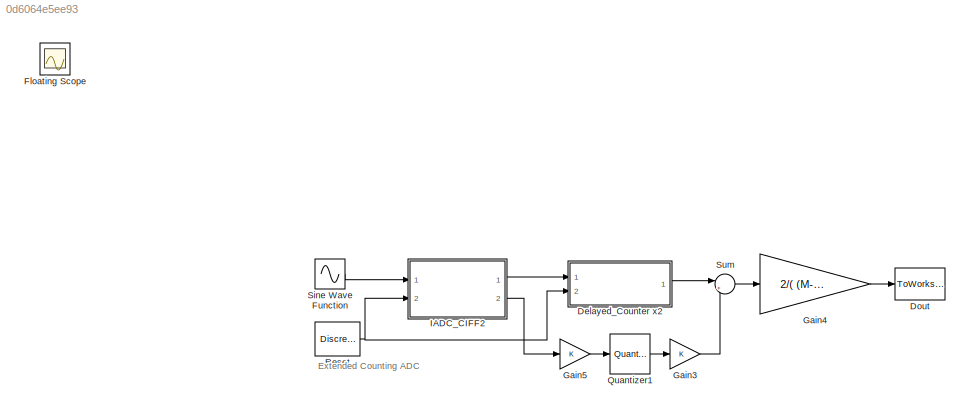
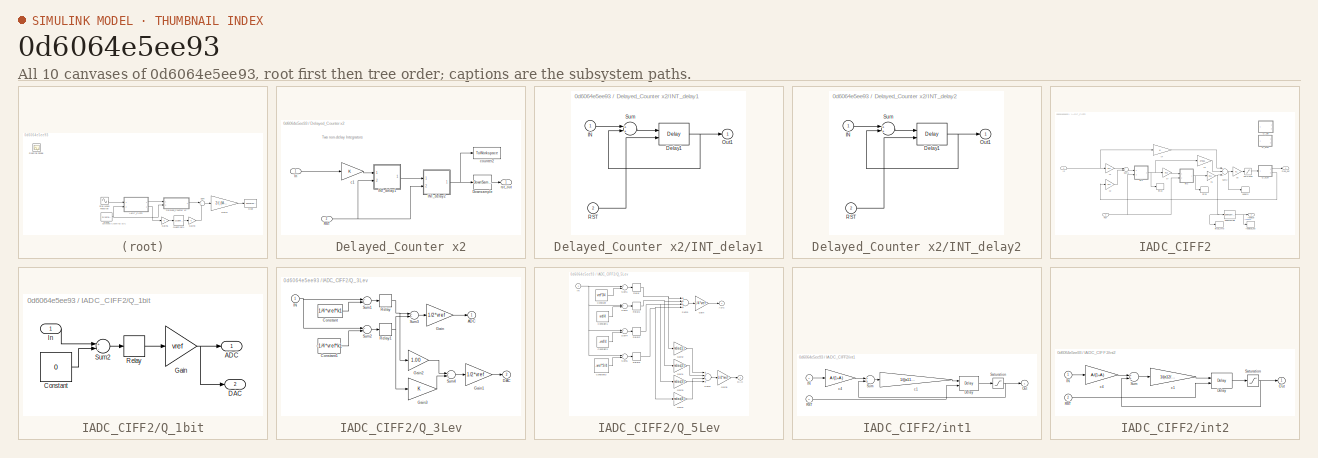
[diagram: thumbnail index - all 10 canvases of the model, root first then tree order]
MODEL slx_0d6064e5ee93
KIND model
CONFIG AbsTol = auto
CONFIG EnableMultiTasking = on
CONFIG FixedStep = auto
CONFIG MaxStep = auto
CONFIG MinStep = auto
CONFIG RelTol = 1e-3
CONFIG SampleTimeConstraint = Unconstrained
CONFIG Solver = ode45
CONFIG SolverName = ode45
CONFIG StartTime = 0.0
CONFIG StopTime = 100e-6
BLOCK [SubSystem] Delayed_Counter x2
  Ports = [2, 1]
  RequestExecContextInheritance = off
BLOCK [DownSample] Delayed_Counter x2/Downsample
  InputProcessing = Elements as channels (sample based)
  N = OSR
  RateOptions = Allow multirate processing
  phase = OSR-1
BLOCK [SubSystem] Delayed_Counter x2/INT_delay1
  Ports = [2, 1]
  RequestExecContextInheritance = off
BLOCK [Delay] Delayed_Counter x2/INT_delay1/Delay1
  DelayLength = 1
  ExternalReset = Rising
  InitialCondition = 0
  InputPortMap = u0,r5
  Ports = [2, 1]
  UserDataPersistent = on
BLOCK [Inport] Delayed_Counter x2/INT_delay1/IN
  IconDisplay = Port number
BLOCK [Outport] Delayed_Counter x2/INT_delay1/Out1
  IconDisplay = Port number
  VectorParamsAs1DForOutWhenUnconnected = off
BLOCK [Inport] Delayed_Counter x2/INT_delay1/RST
  IconDisplay = Port number
  Port = 2
BLOCK [Sum] Delayed_Counter x2/INT_delay1/Sum
  Ports = [2, 1]
BLOCK [SubSystem] Delayed_Counter x2/INT_delay2
  Ports = [2, 1]
  RequestExecContextInheritance = off
BLOCK [Delay] Delayed_Counter x2/INT_delay2/Delay1
  DelayLength = 1
  ExternalReset = Rising
  InitialCondition = 0
  InputPortMap = u0,r5
  Ports = [2, 1]
  UserDataPersistent = on
BLOCK [Inport] Delayed_Counter x2/INT_delay2/IN
  IconDisplay = Port number
BLOCK [Outport] Delayed_Counter x2/INT_delay2/Out1
  IconDisplay = Port number
  VectorParamsAs1DForOutWhenUnconnected = off
BLOCK [Inport] Delayed_Counter x2/INT_delay2/RST
  IconDisplay = Port number
  Port = 2
BLOCK [Sum] Delayed_Counter x2/INT_delay2/Sum
  Ports = [2, 1]
BLOCK [Inport] Delayed_Counter x2/In
  IconDisplay = Port number
BLOCK [Inport] Delayed_Counter x2/RST
  IconDisplay = Port number
  Port = 2
BLOCK [Gain] Delayed_Counter x2/c1
BLOCK [ToWorkspace] Delayed_Counter x2/counter2
  MaxDataPoints = inf
  Ports = [1]
  SampleTime = -1
  VariableName = counter2
BLOCK [Outport] Delayed_Counter x2/rst_out
  IconDisplay = Port number
  VectorParamsAs1DForOutWhenUnconnected = off
BLOCK [ToWorkspace] Dout
  MaxDataPoints = inf
  Ports = [1]
  SampleTime = -1
  VariableName = Dout
BLOCK [Scope] Floating Scope
  Floating = off
  IOType = viewer
  NumInputPorts = 1
  Ports = []
  ScopeSpecificationString = C++SS(StrPVP('Location','[376, 294, 963, 755]'),StrPVP('Open','off'),MxPVP('AxesTitles',54,'struct(''axes1'',''%<SignalLabel>'')'),StrPVP('DataFormat','StructureWithTime'),StrPVP('BlockParamSampleTime','0'),StrPVP('LimitDataPoints','on'),StrPVP('Decimation','1'),StrPVP('BlockParamSampleInput','off'))
BLOCK [Gain] Gain3
  OutDataTypeStr = Inherit: Inherit via internal rule
  ParamDataTypeStr = Inherit: Inherit via internal rule
  SaturateOnIntegerOverflow = off
BLOCK [Gain] Gain4
  Gain = 2/( (M-1)*(M) )
  OutDataTypeStr = Inherit: Inherit via internal rule
  ParamDataTypeStr = Inherit: Inherit via internal rule
  SaturateOnIntegerOverflow = off
BLOCK [Gain] Gain5
  OutDataTypeStr = Inherit: Inherit via internal rule
  ParamDataTypeStr = Inherit: Inherit via internal rule
  SaturateOnIntegerOverflow = off
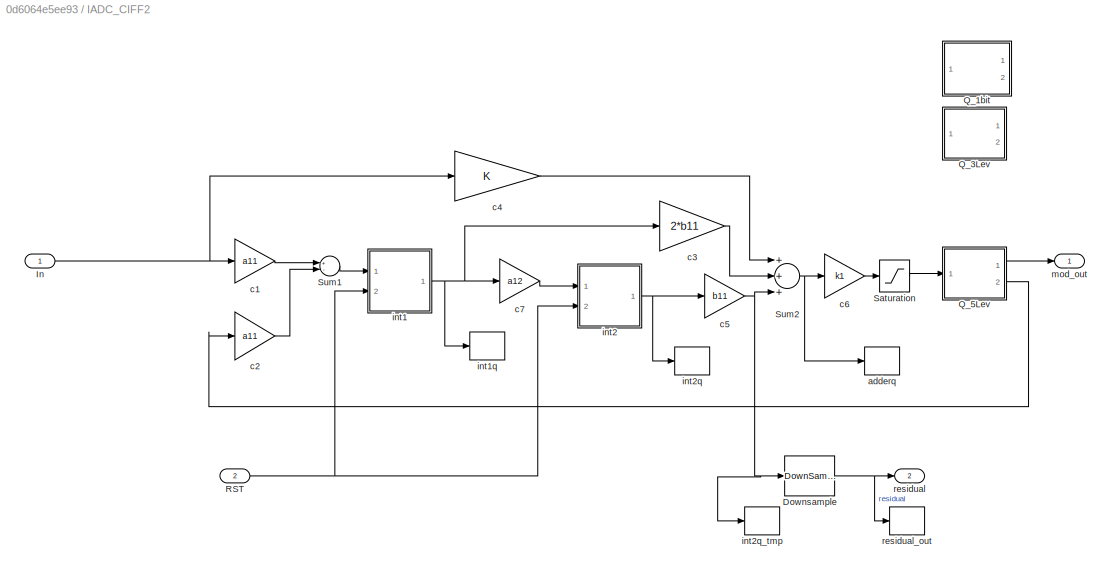
BLOCK [SubSystem] IADC_CIFF2
  Ports = [2, 2]
  RequestExecContextInheritance = off
BLOCK [DownSample] IADC_CIFF2/Downsample
  InputProcessing = Elements as channels (sample based)
  N = OSR
  RateOptions = Allow multirate processing
  phase = OSR-1
BLOCK [Inport] IADC_CIFF2/In
  IconDisplay = Port number
BLOCK [SubSystem] IADC_CIFF2/Q_1bit
  Commented = on
  Ports = [1, 2]
  RequestExecContextInheritance = off
BLOCK [Outport] IADC_CIFF2/Q_1bit/ADC
  IconDisplay = Port number
  VectorParamsAs1DForOutWhenUnconnected = off
BLOCK [Constant] IADC_CIFF2/Q_1bit/Constant
  Value = 0
BLOCK [Outport] IADC_CIFF2/Q_1bit/DAC
  IconDisplay = Port number
  Port = 2
  VectorParamsAs1DForOutWhenUnconnected = off
BLOCK [Gain] IADC_CIFF2/Q_1bit/Gain
  Gain = vref
  OutDataTypeStr = Inherit: Inherit via internal rule
  ParamDataTypeStr = Inherit: Inherit via internal rule
  SaturateOnIntegerOverflow = off
BLOCK [Inport] IADC_CIFF2/Q_1bit/In
  IconDisplay = Port number
BLOCK [Relay] IADC_CIFF2/Q_1bit/Relay
  OffOutputValue = -1
  SampleTime = tclk
BLOCK [Sum] IADC_CIFF2/Q_1bit/Sum2
  Inputs = +-
  Ports = [2, 1]
BLOCK [SubSystem] IADC_CIFF2/Q_3Lev
  Commented = on
  Ports = [1, 2]
  RequestExecContextInheritance = off
BLOCK [Outport] IADC_CIFF2/Q_3Lev/ADC
  IconDisplay = Port number
  VectorParamsAs1DForOutWhenUnconnected = off
BLOCK [Constant] IADC_CIFF2/Q_3Lev/Constant
  Value = 1/4*vref*k1
BLOCK [Constant] IADC_CIFF2/Q_3Lev/Constant1
  Value = -1/4*vref*k1
BLOCK [Outport] IADC_CIFF2/Q_3Lev/DAC
  IconDisplay = Port number
  Port = 2
  VectorParamsAs1DForOutWhenUnconnected = off
BLOCK [Gain] IADC_CIFF2/Q_3Lev/Gain
  Gain = 1/2*vref
  OutDataTypeStr = Inherit: Inherit via internal rule
  ParamDataTypeStr = Inherit: Inherit via internal rule
  SaturateOnIntegerOverflow = off
BLOCK [Gain] IADC_CIFF2/Q_3Lev/Gain1
  Gain = 1/2*vref
  OutDataTypeStr = Inherit: Inherit via internal rule
  ParamDataTypeStr = Inherit: Inherit via internal rule
  SaturateOnIntegerOverflow = off
BLOCK [Gain] IADC_CIFF2/Q_3Lev/Gain2
  Gain = 1.00
  OutDataTypeStr = Inherit: Inherit via internal rule
  ParamDataTypeStr = Inherit: Inherit via internal rule
  SaturateOnIntegerOverflow = off
BLOCK [Gain] IADC_CIFF2/Q_3Lev/Gain3
  OutDataTypeStr = Inherit: Inherit via internal rule
  ParamDataTypeStr = Inherit: Inherit via internal rule
  SaturateOnIntegerOverflow = off
BLOCK [Inport] IADC_CIFF2/Q_3Lev/IN
  IconDisplay = Port number
BLOCK [Relay] IADC_CIFF2/Q_3Lev/Relay
  OffOutputValue = -1
  SampleTime = tclk
BLOCK [Relay] IADC_CIFF2/Q_3Lev/Relay1
  OffOutputValue = -1
  SampleTime = tclk
BLOCK [Sum] IADC_CIFF2/Q_3Lev/Sum1
  Inputs = +-
  Ports = [2, 1]
BLOCK [Sum] IADC_CIFF2/Q_3Lev/Sum2
  Inputs = +-
  Ports = [2, 1]
BLOCK [Sum] IADC_CIFF2/Q_3Lev/Sum3
  Ports = [2, 1]
BLOCK [Sum] IADC_CIFF2/Q_3Lev/Sum4
  Ports = [2, 1]
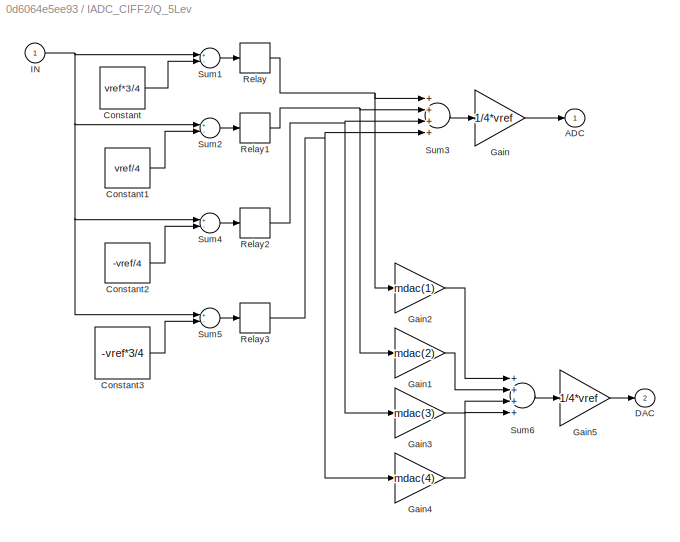
BLOCK [SubSystem] IADC_CIFF2/Q_5Lev
  Ports = [1, 2]
  RequestExecContextInheritance = off
BLOCK [Outport] IADC_CIFF2/Q_5Lev/ADC
  IconDisplay = Port number
  VectorParamsAs1DForOutWhenUnconnected = off
BLOCK [Constant] IADC_CIFF2/Q_5Lev/Constant
  Value = vref*3/4
BLOCK [Constant] IADC_CIFF2/Q_5Lev/Constant1
  Value = vref/4
BLOCK [Constant] IADC_CIFF2/Q_5Lev/Constant2
  Value = -vref/4
BLOCK [Constant] IADC_CIFF2/Q_5Lev/Constant3
  Value = -vref*3/4
BLOCK [Outport] IADC_CIFF2/Q_5Lev/DAC
  IconDisplay = Port number
  Port = 2
  VectorParamsAs1DForOutWhenUnconnected = off
BLOCK [Gain] IADC_CIFF2/Q_5Lev/Gain
  Gain = 1/4*vref
  OutDataTypeStr = Inherit: Inherit via internal rule
  ParamDataTypeStr = Inherit: Inherit via internal rule
  SaturateOnIntegerOverflow = off
BLOCK [Gain] IADC_CIFF2/Q_5Lev/Gain1
  Gain = mdac(2)
  OutDataTypeStr = Inherit: Inherit via internal rule
  ParamDataTypeStr = Inherit: Inherit via internal rule
  SaturateOnIntegerOverflow = off
BLOCK [Gain] IADC_CIFF2/Q_5Lev/Gain2
  Gain = mdac(1)
  OutDataTypeStr = Inherit: Inherit via internal rule
  ParamDataTypeStr = Inherit: Inherit via internal rule
  SaturateOnIntegerOverflow = off
BLOCK [Gain] IADC_CIFF2/Q_5Lev/Gain3
  Gain = mdac(3)
  OutDataTypeStr = Inherit: Inherit via internal rule
  ParamDataTypeStr = Inherit: Inherit via internal rule
  SaturateOnIntegerOverflow = off
BLOCK [Gain] IADC_CIFF2/Q_5Lev/Gain4
  Gain = mdac(4)
  OutDataTypeStr = Inherit: Inherit via internal rule
  ParamDataTypeStr = Inherit: Inherit via internal rule
  SaturateOnIntegerOverflow = off
BLOCK [Gain] IADC_CIFF2/Q_5Lev/Gain5
  Gain = 1/4*vref
  OutDataTypeStr = Inherit: Inherit via internal rule
  ParamDataTypeStr = Inherit: Inherit via internal rule
  SaturateOnIntegerOverflow = off
BLOCK [Inport] IADC_CIFF2/Q_5Lev/IN
  IconDisplay = Port number
BLOCK [Relay] IADC_CIFF2/Q_5Lev/Relay
  OffOutputValue = -1
  SampleTime = tclk
BLOCK [Relay] IADC_CIFF2/Q_5Lev/Relay1
  OffOutputValue = -1
  SampleTime = tclk
BLOCK [Relay] IADC_CIFF2/Q_5Lev/Relay2
  OffOutputValue = -1
  SampleTime = tclk
BLOCK [Relay] IADC_CIFF2/Q_5Lev/Relay3
  OffOutputValue = -1
  SampleTime = tclk
BLOCK [Sum] IADC_CIFF2/Q_5Lev/Sum1
  Inputs = +-
  Ports = [2, 1]
BLOCK [Sum] IADC_CIFF2/Q_5Lev/Sum2
  Inputs = +-
  Ports = [2, 1]
BLOCK [Sum] IADC_CIFF2/Q_5Lev/Sum3
  Inputs = ++++
  Ports = [4, 1]
BLOCK [Sum] IADC_CIFF2/Q_5Lev/Sum4
  Inputs = +-
  Ports = [2, 1]
BLOCK [Sum] IADC_CIFF2/Q_5Lev/Sum5
  Inputs = +-
  Ports = [2, 1]
BLOCK [Sum] IADC_CIFF2/Q_5Lev/Sum6
  Inputs = ++++
  Ports = [4, 1]
BLOCK [Inport] IADC_CIFF2/RST
  IconDisplay = Port number
  Port = 2
BLOCK [Saturate] IADC_CIFF2/Saturation
  InputPortMap = u0
  LowerLimit = -1*adder_max
  Ports = [1, 1]
  UpperLimit = adder_max*1
BLOCK [Sum] IADC_CIFF2/Sum1
  Inputs = +-
  Ports = [2, 1]
BLOCK [Sum] IADC_CIFF2/Sum2
  Inputs = +++
  Ports = [3, 1]
BLOCK [ToWorkspace] IADC_CIFF2/adderq
  MaxDataPoints = inf
  Ports = [1]
  SampleTime = -1
  VariableName = adderq
BLOCK [Gain] IADC_CIFF2/c1
  Gain = a11
BLOCK [Gain] IADC_CIFF2/c2
  Gain = a11
BLOCK [Gain] IADC_CIFF2/c3
  Gain = 2*b11
BLOCK [Gain] IADC_CIFF2/c4
BLOCK [Gain] IADC_CIFF2/c5
  Gain = b11
BLOCK [Gain] IADC_CIFF2/c6
  Gain = k1
BLOCK [Gain] IADC_CIFF2/c7
  Gain = a12
BLOCK [SubSystem] IADC_CIFF2/int1
  Ports = [2, 1]
  RequestExecContextInheritance = off
BLOCK [Delay] IADC_CIFF2/int1/Delay
  DelayLength = 1
  ExternalReset = Rising
  InitialCondition = 0
  InputPortMap = u0,r5
  Ports = [2, 1]
  UserDataPersistent = on
BLOCK [Inport] IADC_CIFF2/int1/IN
  IconDisplay = Port number
BLOCK [Outport] IADC_CIFF2/int1/Out
  IconDisplay = Port number
  VectorParamsAs1DForOutWhenUnconnected = off
BLOCK [Inport] IADC_CIFF2/int1/RST
  IconDisplay = Port number
  Port = 2
BLOCK [Saturate] IADC_CIFF2/int1/Saturation
  InputPortMap = u0
  LowerLimit = -1*Amax
  Ports = [1, 1]
  UpperLimit = Amax
BLOCK [Sum] IADC_CIFF2/int1/Sum
  Ports = [2, 1]
BLOCK [Gain] IADC_CIFF2/int1/c1
  Gain = 1/((a11+a11)/(1+A) +1)
BLOCK [Gain] IADC_CIFF2/int1/c4
  Gain = A/(1+A)
BLOCK [ToWorkspace] IADC_CIFF2/int1q
  MaxDataPoints = inf
  Ports = [1]
  SampleTime = -1
  VariableName = int1q
BLOCK [SubSystem] IADC_CIFF2/int2
  Ports = [2, 1]
  RequestExecContextInheritance = off
BLOCK [Delay] IADC_CIFF2/int2/Delay
  DelayLength = 1
  ExternalReset = Rising
  InitialCondition = 0
  InputPortMap = u0,r5
  Ports = [2, 1]
  UserDataPersistent = on
BLOCK [Inport] IADC_CIFF2/int2/IN
  IconDisplay = Port number
BLOCK [Outport] IADC_CIFF2/int2/Out
  IconDisplay = Port number
  VectorParamsAs1DForOutWhenUnconnected = off
BLOCK [Inport] IADC_CIFF2/int2/RST
  IconDisplay = Port number
  Port = 2
BLOCK [Saturate] IADC_CIFF2/int2/Saturation
  InputPortMap = u0
  LowerLimit = -1*Amax
  Ports = [1, 1]
  UpperLimit = Amax
BLOCK [Sum] IADC_CIFF2/int2/Sum
  Ports = [2, 1]
BLOCK [Gain] IADC_CIFF2/int2/c1
  Gain = 1/(a12/(1+A) +1)
BLOCK [Gain] IADC_CIFF2/int2/c4
  Gain = A/(1+A)
BLOCK [ToWorkspace] IADC_CIFF2/int2q
  MaxDataPoints = inf
  Ports = [1]
  SampleTime = -1
  VariableName = int2q
BLOCK [ToWorkspace] IADC_CIFF2/int2q_tmp
  MaxDataPoints = inf
  Ports = [1]
  SampleTime = -1
  VariableName = int2q_tmp
BLOCK [Outport] IADC_CIFF2/mod_out
  IconDisplay = Port number
  VectorParamsAs1DForOutWhenUnconnected = off
BLOCK [Outport] IADC_CIFF2/residual
  IconDisplay = Port number
  Port = 2
  VectorParamsAs1DForOutWhenUnconnected = off
BLOCK [ToWorkspace] IADC_CIFF2/residual_out
  MaxDataPoints = inf
  Ports = [1]
  SampleTime = -1
  VariableName = residual
BLOCK [Quantizer] Quantizer1
  LinearizeAsGain = off
  QuantizationInterval = vfs/1024
BLOCK [DiscretePulseGenerator] Reset
  Period = OSR
  Ports = [0, 1]
  SampleTime = tclk
BLOCK [Sin] Sine Wave Function
  Amplitude = vin_amp
  Frequency = fsig*2*pi
  Ports = [0, 1]
  SampleTime = tclk
BLOCK [Sum] Sum
  IconShape = round
  InputSameDT = off
  Inputs = |++
  OutDataTypeStr = Inherit: Inherit via internal rule
  Ports = [2, 1]
  SaturateOnIntegerOverflow = off
ANNOTATION (root): Extended Counting ADC
ANNOTATION Delayed_Counter x2: Two non-delay Integrators
LINE Delayed_Counter x2/Downsample:1 -> Delayed_Counter x2/rst_out:1
NET Delayed_Counter x2/INT_delay1/Delay1:1 -> Delayed_Counter x2/INT_delay1/Out1:1, Delayed_Counter x2/INT_delay1/Sum:2
LINE Delayed_Counter x2/INT_delay1/IN:1 -> Delayed_Counter x2/INT_delay1/Sum:1
LINE Delayed_Counter x2/INT_delay1/RST:1 -> Delayed_Counter x2/INT_delay1/Delay1:2
LINE Delayed_Counter x2/INT_delay1/Sum:1 -> Delayed_Counter x2/INT_delay1/Delay1:1
LINE Delayed_Counter x2/INT_delay1:1 -> Delayed_Counter x2/INT_delay2:1
NET Delayed_Counter x2/INT_delay2/Delay1:1 -> Delayed_Counter x2/INT_delay2/Out1:1, Delayed_Counter x2/INT_delay2/Sum:2
LINE Delayed_Counter x2/INT_delay2/IN:1 -> Delayed_Counter x2/INT_delay2/Sum:1
LINE Delayed_Counter x2/INT_delay2/RST:1 -> Delayed_Counter x2/INT_delay2/Delay1:2
LINE Delayed_Counter x2/INT_delay2/Sum:1 -> Delayed_Counter x2/INT_delay2/Delay1:1
NET Delayed_Counter x2/INT_delay2:1 -> Delayed_Counter x2/Downsample:1, Delayed_Counter x2/counter2:1
LINE Delayed_Counter x2/In:1 -> Delayed_Counter x2/c1:1
NET Delayed_Counter x2/RST:1 -> Delayed_Counter x2/INT_delay1:2, Delayed_Counter x2/INT_delay2:2
LINE Delayed_Counter x2/c1:1 -> Delayed_Counter x2/INT_delay1:1
LINE Delayed_Counter x2:1 -> Sum:1
LINE Gain3:1 -> Sum:2
LINE Gain4:1 -> Dout:1
LINE Gain5:1 -> Quantizer1:1
NET IADC_CIFF2/Downsample:1 -> IADC_CIFF2/residual:1, IADC_CIFF2/residual_out:1
NET IADC_CIFF2/In:1 -> IADC_CIFF2/c1:1, IADC_CIFF2/c4:1
LINE IADC_CIFF2/Q_1bit/Constant:1 -> IADC_CIFF2/Q_1bit/Sum2:2
NET IADC_CIFF2/Q_1bit/Gain:1 -> IADC_CIFF2/Q_1bit/ADC:1, IADC_CIFF2/Q_1bit/DAC:1
LINE IADC_CIFF2/Q_1bit/In:1 -> IADC_CIFF2/Q_1bit/Sum2:1
LINE IADC_CIFF2/Q_1bit/Relay:1 -> IADC_CIFF2/Q_1bit/Gain:1
LINE IADC_CIFF2/Q_1bit/Sum2:1 -> IADC_CIFF2/Q_1bit/Relay:1
LINE IADC_CIFF2/Q_3Lev/Constant1:1 -> IADC_CIFF2/Q_3Lev/Sum2:2
LINE IADC_CIFF2/Q_3Lev/Constant:1 -> IADC_CIFF2/Q_3Lev/Sum1:2
LINE IADC_CIFF2/Q_3Lev/Gain1:1 -> IADC_CIFF2/Q_3Lev/DAC:1
LINE IADC_CIFF2/Q_3Lev/Gain2:1 -> IADC_CIFF2/Q_3Lev/Sum4:1
LINE IADC_CIFF2/Q_3Lev/Gain3:1 -> IADC_CIFF2/Q_3Lev/Sum4:2
LINE IADC_CIFF2/Q_3Lev/Gain:1 -> IADC_CIFF2/Q_3Lev/ADC:1
NET IADC_CIFF2/Q_3Lev/IN:1 -> IADC_CIFF2/Q_3Lev/Sum1:1, IADC_CIFF2/Q_3Lev/Sum2:1
NET IADC_CIFF2/Q_3Lev/Relay1:1 -> IADC_CIFF2/Q_3Lev/Gain3:1, IADC_CIFF2/Q_3Lev/Sum3:2
NET IADC_CIFF2/Q_3Lev/Relay:1 -> IADC_CIFF2/Q_3Lev/Gain2:1, IADC_CIFF2/Q_3Lev/Sum3:1
LINE IADC_CIFF2/Q_3Lev/Sum1:1 -> IADC_CIFF2/Q_3Lev/Relay:1
LINE IADC_CIFF2/Q_3Lev/Sum2:1 -> IADC_CIFF2/Q_3Lev/Relay1:1
LINE IADC_CIFF2/Q_3Lev/Sum3:1 -> IADC_CIFF2/Q_3Lev/Gain:1
LINE IADC_CIFF2/Q_3Lev/Sum4:1 -> IADC_CIFF2/Q_3Lev/Gain1:1
LINE IADC_CIFF2/Q_5Lev/Constant1:1 -> IADC_CIFF2/Q_5Lev/Sum2:2
LINE IADC_CIFF2/Q_5Lev/Constant2:1 -> IADC_CIFF2/Q_5Lev/Sum4:2
LINE IADC_CIFF2/Q_5Lev/Constant3:1 -> IADC_CIFF2/Q_5Lev/Sum5:2
LINE IADC_CIFF2/Q_5Lev/Constant:1 -> IADC_CIFF2/Q_5Lev/Sum1:2
LINE IADC_CIFF2/Q_5Lev/Gain1:1 -> IADC_CIFF2/Q_5Lev/Sum6:2
LINE IADC_CIFF2/Q_5Lev/Gain2:1 -> IADC_CIFF2/Q_5Lev/Sum6:1
LINE IADC_CIFF2/Q_5Lev/Gain3:1 -> IADC_CIFF2/Q_5Lev/Sum6:3
LINE IADC_CIFF2/Q_5Lev/Gain4:1 -> IADC_CIFF2/Q_5Lev/Sum6:4
LINE IADC_CIFF2/Q_5Lev/Gain5:1 -> IADC_CIFF2/Q_5Lev/DAC:1
LINE IADC_CIFF2/Q_5Lev/Gain:1 -> IADC_CIFF2/Q_5Lev/ADC:1
NET IADC_CIFF2/Q_5Lev/IN:1 -> IADC_CIFF2/Q_5Lev/Sum1:1, IADC_CIFF2/Q_5Lev/Sum2:1, IADC_CIFF2/Q_5Lev/Sum4:1, IADC_CIFF2/Q_5Lev/Sum5:1
NET IADC_CIFF2/Q_5Lev/Relay1:1 -> IADC_CIFF2/Q_5Lev/Gain1:1, IADC_CIFF2/Q_5Lev/Sum3:2
NET IADC_CIFF2/Q_5Lev/Relay2:1 -> IADC_CIFF2/Q_5Lev/Gain3:1, IADC_CIFF2/Q_5Lev/Sum3:3
NET IADC_CIFF2/Q_5Lev/Relay3:1 -> IADC_CIFF2/Q_5Lev/Gain4:1, IADC_CIFF2/Q_5Lev/Sum3:4
NET IADC_CIFF2/Q_5Lev/Relay:1 -> IADC_CIFF2/Q_5Lev/Gain2:1, IADC_CIFF2/Q_5Lev/Sum3:1
LINE IADC_CIFF2/Q_5Lev/Sum1:1 -> IADC_CIFF2/Q_5Lev/Relay:1
LINE IADC_CIFF2/Q_5Lev/Sum2:1 -> IADC_CIFF2/Q_5Lev/Relay1:1
LINE IADC_CIFF2/Q_5Lev/Sum3:1 -> IADC_CIFF2/Q_5Lev/Gain:1
LINE IADC_CIFF2/Q_5Lev/Sum4:1 -> IADC_CIFF2/Q_5Lev/Relay2:1
LINE IADC_CIFF2/Q_5Lev/Sum5:1 -> IADC_CIFF2/Q_5Lev/Relay3:1
LINE IADC_CIFF2/Q_5Lev/Sum6:1 -> IADC_CIFF2/Q_5Lev/Gain5:1
LINE IADC_CIFF2/Q_5Lev:1 -> IADC_CIFF2/mod_out:1
LINE IADC_CIFF2/Q_5Lev:2 -> IADC_CIFF2/c2:1
NET IADC_CIFF2/RST:1 -> IADC_CIFF2/int1:2, IADC_CIFF2/int2:2
LINE IADC_CIFF2/Saturation:1 -> IADC_CIFF2/Q_5Lev:1
LINE IADC_CIFF2/Sum1:1 -> IADC_CIFF2/int1:1
NET IADC_CIFF2/Sum2:1 -> IADC_CIFF2/adderq:1, IADC_CIFF2/c6:1
LINE IADC_CIFF2/c1:1 -> IADC_CIFF2/Sum1:1
LINE IADC_CIFF2/c2:1 -> IADC_CIFF2/Sum1:2
LINE IADC_CIFF2/c3:1 -> IADC_CIFF2/Sum2:2
LINE IADC_CIFF2/c4:1 -> IADC_CIFF2/Sum2:1
NET IADC_CIFF2/c5:1 -> IADC_CIFF2/Downsample:1, IADC_CIFF2/Sum2:3, IADC_CIFF2/int2q_tmp:1
LINE IADC_CIFF2/c6:1 -> IADC_CIFF2/Saturation:1
LINE IADC_CIFF2/c7:1 -> IADC_CIFF2/int2:1
LINE IADC_CIFF2/int1/Delay:1 -> IADC_CIFF2/int1/Saturation:1
LINE IADC_CIFF2/int1/IN:1 -> IADC_CIFF2/int1/c4:1
LINE IADC_CIFF2/int1/RST:1 -> IADC_CIFF2/int1/Delay:2
NET IADC_CIFF2/int1/Saturation:1 -> IADC_CIFF2/int1/Out:1, IADC_CIFF2/int1/Sum:2
LINE IADC_CIFF2/int1/Sum:1 -> IADC_CIFF2/int1/c1:1
LINE IADC_CIFF2/int1/c1:1 -> IADC_CIFF2/int1/Delay:1
LINE IADC_CIFF2/int1/c4:1 -> IADC_CIFF2/int1/Sum:1
NET IADC_CIFF2/int1:1 -> IADC_CIFF2/c3:1, IADC_CIFF2/c7:1, IADC_CIFF2/int1q:1
LINE IADC_CIFF2/int2/Delay:1 -> IADC_CIFF2/int2/Saturation:1
LINE IADC_CIFF2/int2/IN:1 -> IADC_CIFF2/int2/c4:1
LINE IADC_CIFF2/int2/RST:1 -> IADC_CIFF2/int2/Delay:2
NET IADC_CIFF2/int2/Saturation:1 -> IADC_CIFF2/int2/Out:1, IADC_CIFF2/int2/Sum:2
LINE IADC_CIFF2/int2/Sum:1 -> IADC_CIFF2/int2/c1:1
LINE IADC_CIFF2/int2/c1:1 -> IADC_CIFF2/int2/Delay:1
LINE IADC_CIFF2/int2/c4:1 -> IADC_CIFF2/int2/Sum:1
NET IADC_CIFF2/int2:1 -> IADC_CIFF2/c5:1, IADC_CIFF2/int2q:1
LINE IADC_CIFF2:1 -> Delayed_Counter x2:1
LINE IADC_CIFF2:2 -> Gain5:1
LINE Quantizer1:1 -> Gain3:1
NET Reset:1 -> Delayed_Counter x2:2, IADC_CIFF2:2
LINE Sine Wave Function:1 -> IADC_CIFF2:1
LINE Sum:1 -> Gain4:1
note: NET lines group one-source signal fan-out (src -> all destinations, sorted); 1:1 wires keep LINE
